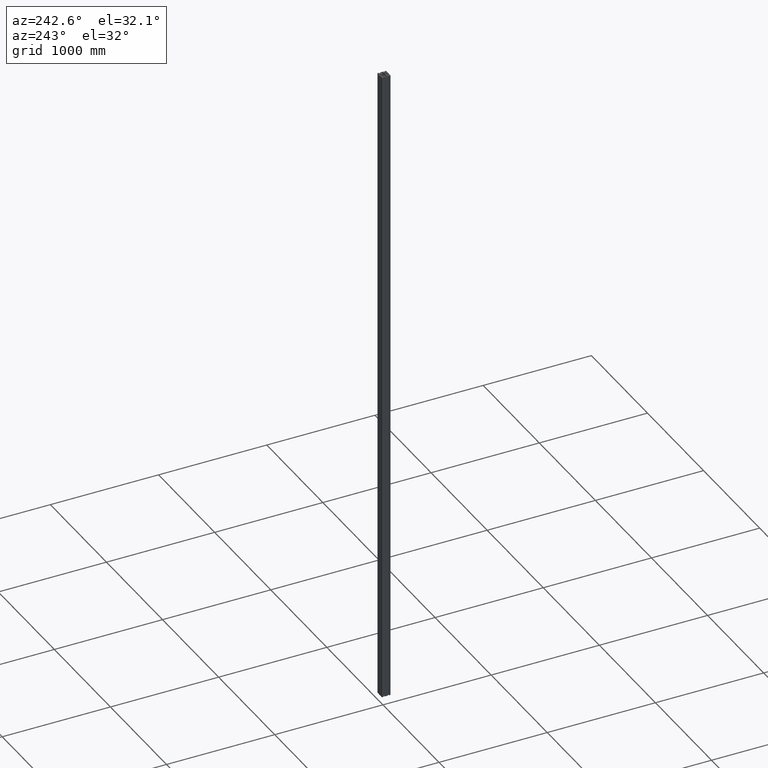
[diagram: clean part render]
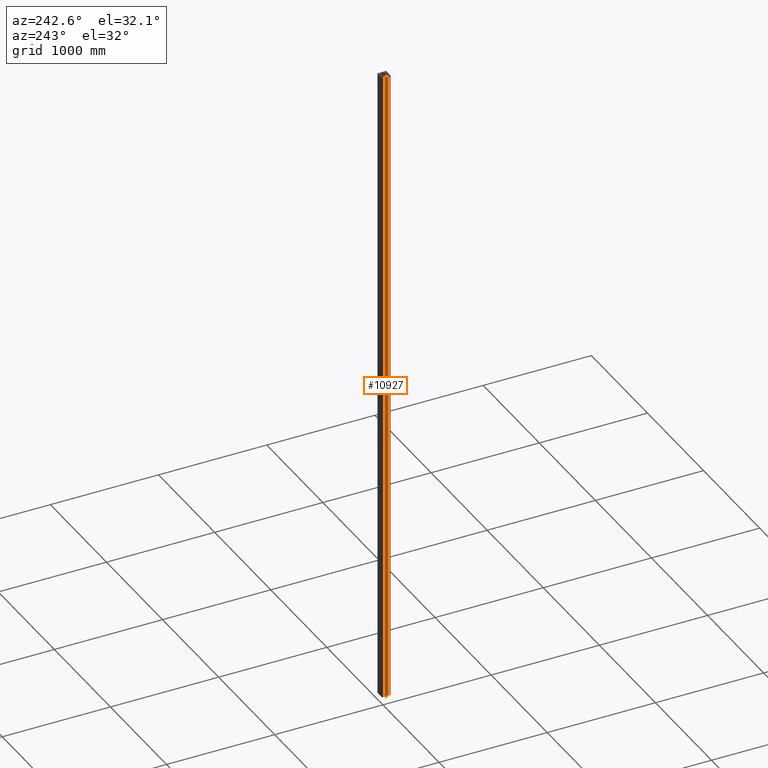
[diagram: same view with one face highlighted and labeled with its STEP entity id]
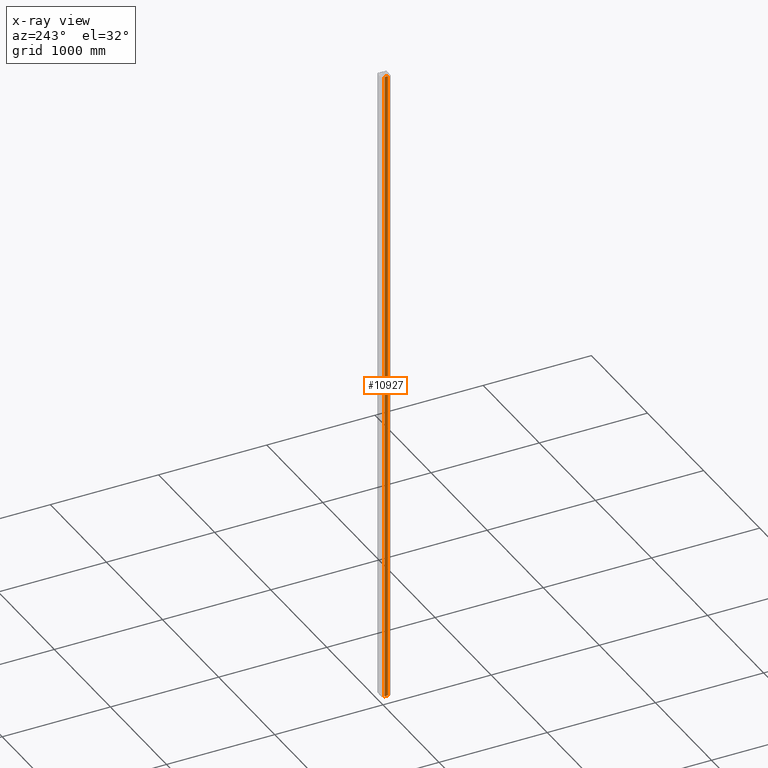
[diagram: x-ray of the same camera — body ghosted, the highlighted face saturated]
A machine part, auxiliary view. The second image highlights one B-rep face of the part: STEP entity #10927.
The next image is the same camera in x-ray: the body ghosted, the highlighted face saturated — about 0% of this face is hidden behind the body in this view.
In plain terms, the highlighted planar face has unit normal (-1, 0, 0).
Its self-contained STEP definition (entity closure, byte-faithful):
#944 = CARTESIAN_POINT ( 'NONE',  ( -20.00000000000000000, -35.50000000000000700, 0.0000000000000000000 ) ) ;
#1947 = VERTEX_POINT ( 'NONE', #24113 ) ;
#3310 = EDGE_CURVE ( 'NONE', #8533, #1947, #7486, .T. ) ;
#3311 = EDGE_CURVE ( 'NONE', #8531, #23380, #7488, .T. ) ;
#3920 = CARTESIAN_POINT ( 'NONE',  ( -20.00000000000000000, -4.500000000000001800, 0.0000000000000000000 ) ) ;
#3922 = CARTESIAN_POINT ( 'NONE',  ( -20.00000000000000000, -4.500000000000000900, -6000.000000000000000 ) ) ;
#4573 = LINE ( 'NONE', #4969, #4575 ) ;
#4575 = VECTOR ( 'NONE', #4970, 1000.000000000000000 ) ;
#4576 = LINE ( 'NONE', #4974, #4578 ) ;
#4578 = VECTOR ( 'NONE', #4975, 1000.000000000000000 ) ;
#4969 = CARTESIAN_POINT ( 'NONE',  ( -20.00000000000000000, -4.500000000000000900, -3000.000000000000000 ) ) ;
#4970 = DIRECTION ( 'NONE',  ( -0.0000000000000000000, -0.0000000000000000000, -1.000000000000000000 ) ) ;
#4974 = CARTESIAN_POINT ( 'NONE',  ( -20.00000000000000000, -35.50000000000000700, -3000.000000000000000 ) ) ;
#4975 = DIRECTION ( 'NONE',  ( 0.0000000000000000000, 0.0000000000000000000, 1.000000000000000000 ) ) ;
#7486 = LINE ( 'NONE', #8005, #7487 ) ;
#7487 = VECTOR ( 'NONE', #8006, 1000.000000000000000 ) ;
#7488 = LINE ( 'NONE', #8007, #7489 ) ;
#7489 = VECTOR ( 'NONE', #8008, 1000.000000000000000 ) ;
#8005 = CARTESIAN_POINT ( 'NONE',  ( -20.00000000000000000, -35.50000000000000700, -6000.000000000000000 ) ) ;
#8006 = DIRECTION ( 'NONE',  ( -0.0000000000000000000, -1.000000000000000000, 0.0000000000000000000 ) ) ;
#8007 = CARTESIAN_POINT ( 'NONE',  ( -20.00000000000000000, -60.00000000000000000, 0.0000000000000000000 ) ) ;
#8008 = DIRECTION ( 'NONE',  ( -0.0000000000000000000, -1.000000000000000000, -0.0000000000000000000 ) ) ;
#8531 = VERTEX_POINT ( 'NONE', #3920 ) ;
#8533 = VERTEX_POINT ( 'NONE', #3922 ) ;
#8837 = EDGE_CURVE ( 'NONE', #8531, #8533, #4573, .T. ) ;
#8839 = EDGE_CURVE ( 'NONE', #1947, #23380, #4576, .T. ) ;
#9726 = EDGE_LOOP ( 'NONE', ( #27928, #27929, #27930, #27931 ) ) ;
#10927 = ADVANCED_FACE ( 'NONE', ( #11295 ), #11766, .T. ) ;
#11295 = FACE_OUTER_BOUND ( 'NONE', #9726, .T. ) ;
#11766 = PLANE ( 'NONE',  #17104 ) ;
#11767 = CARTESIAN_POINT ( 'NONE',  ( -20.00000000000000000, -35.50000000000000700, -6000.000000000000000 ) ) ;
#11768 = DIRECTION ( 'NONE',  ( -1.000000000000000000, 0.0000000000000000000, 0.0000000000000000000 ) ) ;
#11769 = DIRECTION ( 'NONE',  ( 0.0000000000000000000, 0.0000000000000000000, 1.000000000000000000 ) ) ;
#17104 = AXIS2_PLACEMENT_3D ( 'NONE', #11767, #11768, #11769 ) ;
#23380 = VERTEX_POINT ( 'NONE', #944 ) ;
#24113 = CARTESIAN_POINT ( 'NONE',  ( -20.00000000000000000, -35.50000000000000700, -6000.000000000000000 ) ) ;
#27928 = ORIENTED_EDGE ( 'NONE', *, *, #3310, .T. ) ;
#27929 = ORIENTED_EDGE ( 'NONE', *, *, #8839, .T. ) ;
#27930 = ORIENTED_EDGE ( 'NONE', *, *, #3311, .F. ) ;
#27931 = ORIENTED_EDGE ( 'NONE', *, *, #8837, .T. ) ;